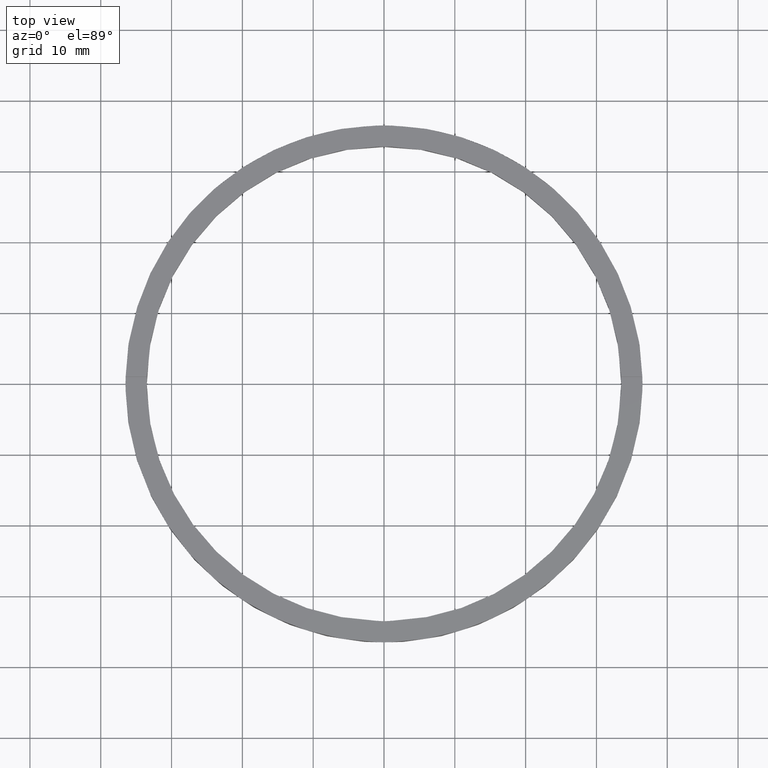
[diagram: clean part render]
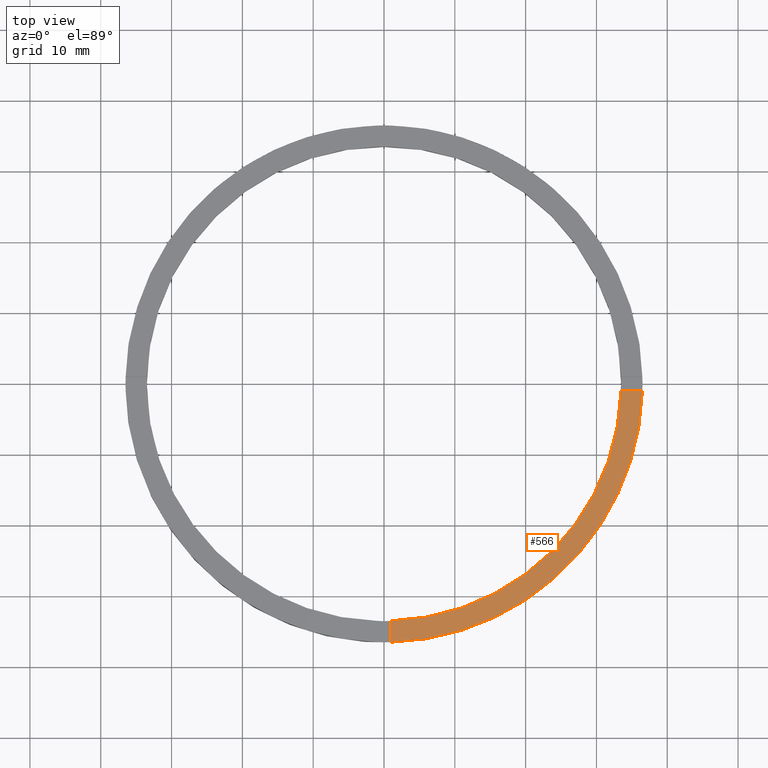
[diagram: same view with one face highlighted and labeled with its STEP entity id]
A machine part, top view. The second image highlights one B-rep face of the part: STEP entity #566.
In plain terms, the highlighted planar face has unit normal (0, 0, 1).
Its self-contained STEP definition (entity closure, byte-faithful):
#30 = AXIS2_PLACEMENT_3D ( 'NONE', #152, #579, #150 ) ;
#34 = DIRECTION ( 'NONE',  ( 0.000000000000000000, 0.000000000000000000, 1.000000000000000000 ) ) ;
#44 = CARTESIAN_POINT ( 'NONE',  ( 0.9999999999998400169, -36.48629879831606360, 3.500000000000000000 ) ) ;
#132 = VERTEX_POINT ( 'NONE', #730 ) ;
#146 = CARTESIAN_POINT ( 'NONE',  ( 36.48629879831604939, -1.000000000000157652, 3.500000000000000000 ) ) ;
#150 = DIRECTION ( 'NONE',  ( 1.000000000000000000, 0.000000000000000000, -0.000000000000000000 ) ) ;
#152 = CARTESIAN_POINT ( 'NONE',  ( 0.000000000000000000, 0.000000000000000000, 3.500000000000000000 ) ) ;
#174 = LINE ( 'NONE', #300, #440 ) ;
#214 = AXIS2_PLACEMENT_3D ( 'NONE', #216, #739, #513 ) ;
#216 = CARTESIAN_POINT ( 'NONE',  ( 0.000000000000000000, 0.000000000000000000, 3.500000000000000000 ) ) ;
#245 = EDGE_CURVE ( 'NONE', #422, #132, #426, .T. ) ;
#284 = VERTEX_POINT ( 'NONE', #146 ) ;
#293 = CARTESIAN_POINT ( 'NONE',  ( 0.000000000000000000, 0.000000000000000000, 3.500000000000000000 ) ) ;
#294 = DIRECTION ( 'NONE',  ( 1.000000000000000000, 0.000000000000000000, 0.000000000000000000 ) ) ;
#300 = CARTESIAN_POINT ( 'NONE',  ( 26.49999999999998934, -1.000000000000158318, 3.500000000000000000 ) ) ;
#317 = EDGE_CURVE ( 'NONE', #132, #284, #174, .T. ) ;
#321 = CIRCLE ( 'NONE', #214, 36.50000000000000000 ) ;
#327 = EDGE_CURVE ( 'NONE', #527, #422, #685, .T. ) ;
#347 = AXIS2_PLACEMENT_3D ( 'NONE', #293, #34, #294 ) ;
#387 = ORIENTED_EDGE ( 'NONE', *, *, #660, .T. ) ;
#422 = VERTEX_POINT ( 'NONE', #481 ) ;
#426 = CIRCLE ( 'NONE', #347, 33.50000000000000000 ) ;
#440 = VECTOR ( 'NONE', #778, 1000.000000000000000 ) ;
#465 = CARTESIAN_POINT ( 'NONE',  ( 0.9999999999998386846, -26.50000000000017764, 3.500000000000000000 ) ) ;
#481 = CARTESIAN_POINT ( 'NONE',  ( 0.9999999999998395728, -33.48507130050644776, 3.500000000000000000 ) ) ;
#490 = PLANE ( 'NONE',  #30 ) ;
#513 = DIRECTION ( 'NONE',  ( 1.000000000000000000, 0.000000000000000000, 0.000000000000000000 ) ) ;
#527 = VERTEX_POINT ( 'NONE', #44 ) ;
#528 = ORIENTED_EDGE ( 'NONE', *, *, #327, .F. ) ;
#566 = ADVANCED_FACE ( 'NONE', ( #578 ), #490, .T. ) ;
#578 = FACE_OUTER_BOUND ( 'NONE', #637, .T. ) ;
#579 = DIRECTION ( 'NONE',  ( 0.000000000000000000, 0.000000000000000000, 1.000000000000000000 ) ) ;
#637 = EDGE_LOOP ( 'NONE', ( #753, #692, #528, #387 ) ) ;
#660 = EDGE_CURVE ( 'NONE', #527, #284, #321, .T. ) ;
#685 = LINE ( 'NONE', #465, #688 ) ;
#688 = VECTOR ( 'NONE', #721, 1000.000000000000000 ) ;
#692 = ORIENTED_EDGE ( 'NONE', *, *, #245, .F. ) ;
#721 = DIRECTION ( 'NONE',  ( -1.301042606982605074E-16, 1.000000000000000000, -0.000000000000000000 ) ) ;
#730 = CARTESIAN_POINT ( 'NONE',  ( 33.48507130050644065, -1.000000000000157874, 3.500000000000000000 ) ) ;
#739 = DIRECTION ( 'NONE',  ( 0.000000000000000000, 0.000000000000000000, 1.000000000000000000 ) ) ;
#753 = ORIENTED_EDGE ( 'NONE', *, *, #317, .F. ) ;
#778 = DIRECTION ( 'NONE',  ( 1.000000000000000000, 6.505213034913025371E-17, 0.000000000000000000 ) ) ;